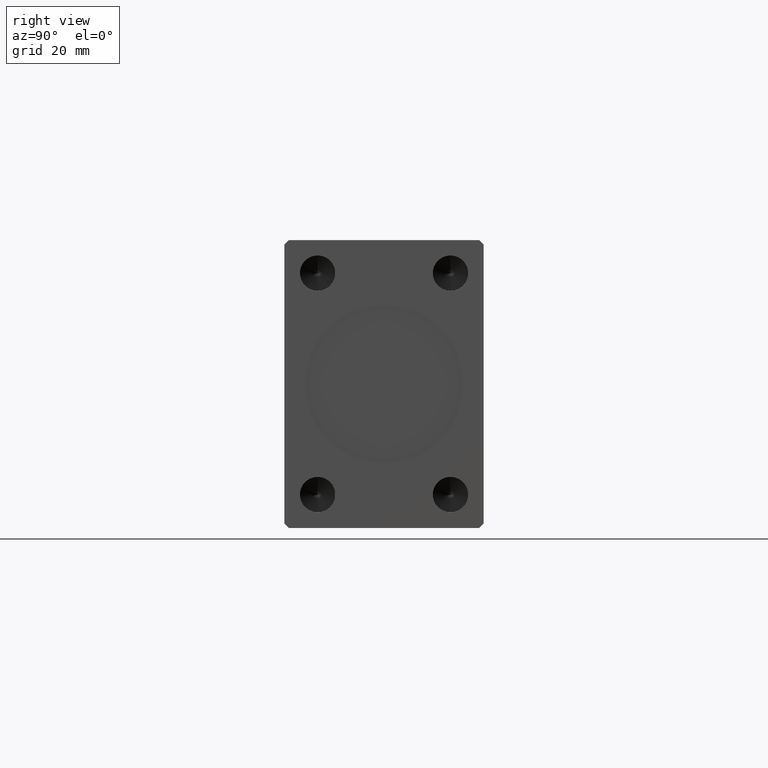
[diagram: clean part render]
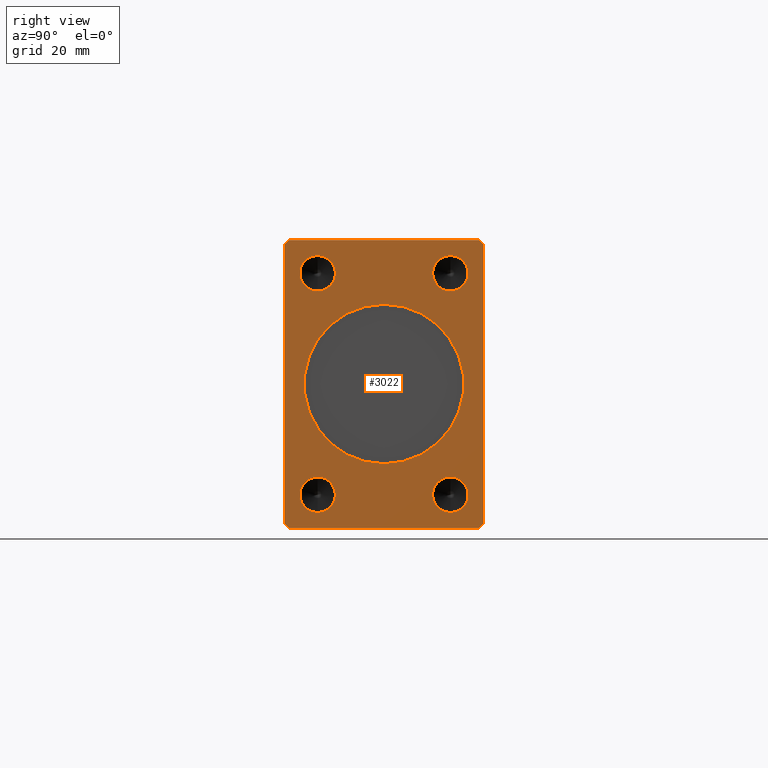
[diagram: same view with one face highlighted and labeled with its STEP entity id]
A machine part, right view. The second image highlights one B-rep face of the part: STEP entity #3022.
In plain terms, the highlighted planar face has unit normal (1, 0, 0).
Its self-contained STEP definition (entity closure, byte-faithful):
#149 = VERTEX_POINT ( 'NONE', #41488 ) ;
#640 = CARTESIAN_POINT ( 'NONE',  ( 138.0000000000000000, 15.00000000000000355, -24.99999999999999289 ) ) ;
#847 = ORIENTED_EDGE ( 'NONE', *, *, #18905, .F. ) ;
#1220 = CARTESIAN_POINT ( 'NONE',  ( 138.0000000000000000, -14.99999999999999645, 24.99999999999999645 ) ) ;
#1411 = FACE_BOUND ( 'NONE', #7786, .T. ) ;
#1564 = CARTESIAN_POINT ( 'NONE',  ( 138.0000000000000000, 22.49999999999999645, 31.50000000000000000 ) ) ;
#2258 = CARTESIAN_POINT ( 'NONE',  ( 138.0000000000000000, -14.99999999999999645, -24.99999999999999645 ) ) ;
#2324 = CARTESIAN_POINT ( 'NONE',  ( 138.0000000000000000, -22.50000000000001421, -31.50000000000000711 ) ) ;
#2932 = LINE ( 'NONE', #22809, #41988 ) ;
#3022 = ADVANCED_FACE ( 'NONE', ( #5400, #31972, #1411, #15445, #29056, #4752 ), #21700, .T. ) ;
#3756 = CARTESIAN_POINT ( 'NONE',  ( 138.0000000000000000, -22.50000000000001776, 31.50000000000000000 ) ) ;
#3759 = ORIENTED_EDGE ( 'NONE', *, *, #44011, .T. ) ;
#3895 = LINE ( 'NONE', #17055, #22601 ) ;
#4752 = FACE_OUTER_BOUND ( 'NONE', #15615, .T. ) ;
#5033 = ORIENTED_EDGE ( 'NONE', *, *, #15383, .F. ) ;
#5153 = VERTEX_POINT ( 'NONE', #11944 ) ;
#5400 = FACE_BOUND ( 'NONE', #16674, .T. ) ;
#5448 = ORIENTED_EDGE ( 'NONE', *, *, #8519, .T. ) ;
#6412 = LINE ( 'NONE', #20009, #24931 ) ;
#6848 = DIRECTION ( 'NONE',  ( 0.000000000000000000, 0.7071067811865474617, 0.7071067811865474617 ) ) ;
#6887 = DIRECTION ( 'NONE',  ( 1.000000000000000000, -0.000000000000000000, -0.000000000000000000 ) ) ;
#6991 = VERTEX_POINT ( 'NONE', #3756 ) ;
#7382 = EDGE_CURVE ( 'NONE', #19353, #17250, #31934, .T. ) ;
#7733 = DIRECTION ( 'NONE',  ( 0.000000000000000000, 0.7071067811865451302, -0.7071067811865500152 ) ) ;
#7786 = EDGE_LOOP ( 'NONE', ( #5033, #21609 ) ) ;
#8103 = DIRECTION ( 'NONE',  ( 0.000000000000000000, 0.000000000000000000, -1.000000000000000000 ) ) ;
#8229 = ORIENTED_EDGE ( 'NONE', *, *, #15408, .T. ) ;
#8519 = EDGE_CURVE ( 'NONE', #42809, #25645, #11523, .T. ) ;
#8758 = DIRECTION ( 'NONE',  ( 1.000000000000000000, 0.000000000000000000, 0.000000000000000000 ) ) ;
#8818 = ORIENTED_EDGE ( 'NONE', *, *, #38331, .F. ) ;
#9487 = VERTEX_POINT ( 'NONE', #18267 ) ;
#10672 = DIRECTION ( 'NONE',  ( 0.000000000000000000, 0.000000000000000000, -1.000000000000000000 ) ) ;
#10816 = DIRECTION ( 'NONE',  ( 1.000000000000000000, -0.000000000000000000, -0.000000000000000000 ) ) ;
#10905 = CARTESIAN_POINT ( 'NONE',  ( 138.0000000000000000, 22.49999999999999645, -31.50000000000000000 ) ) ;
#11042 = VERTEX_POINT ( 'NONE', #15694 ) ;
#11243 = DIRECTION ( 'NONE',  ( 1.000000000000000000, -0.000000000000000000, -0.000000000000000000 ) ) ;
#11523 = LINE ( 'NONE', #31822, #11839 ) ;
#11554 = ORIENTED_EDGE ( 'NONE', *, *, #23460, .T. ) ;
#11727 = ORIENTED_EDGE ( 'NONE', *, *, #14217, .T. ) ;
#11839 = VECTOR ( 'NONE', #7733, 1000.000000000000114 ) ;
#11944 = CARTESIAN_POINT ( 'NONE',  ( 138.0000000000000000, 15.00000000000000355, -28.99999999999999289 ) ) ;
#12078 = AXIS2_PLACEMENT_3D ( 'NONE', #26999, #23009, #36634 ) ;
#12110 = VERTEX_POINT ( 'NONE', #43582 ) ;
#12156 = DIRECTION ( 'NONE',  ( 1.000000000000000000, -0.000000000000000000, -0.000000000000000000 ) ) ;
#12225 = CIRCLE ( 'NONE', #17911, 4.000000000000000000 ) ;
#12294 = CIRCLE ( 'NONE', #13700, 4.000000000000000000 ) ;
#12372 = DIRECTION ( 'NONE',  ( 0.000000000000000000, 0.000000000000000000, -1.000000000000000000 ) ) ;
#13479 = AXIS2_PLACEMENT_3D ( 'NONE', #24669, #22220, #38521 ) ;
#13700 = AXIS2_PLACEMENT_3D ( 'NONE', #640, #6887, #10672 ) ;
#13710 = LINE ( 'NONE', #27318, #17558 ) ;
#14217 = EDGE_CURVE ( 'NONE', #6991, #42809, #13710, .T. ) ;
#14377 = CARTESIAN_POINT ( 'NONE',  ( 138.0000000000000000, -14.99999999999999645, -24.99999999999999645 ) ) ;
#14847 = VERTEX_POINT ( 'NONE', #26558 ) ;
#14953 = EDGE_LOOP ( 'NONE', ( #8818, #21890 ) ) ;
#15114 = ORIENTED_EDGE ( 'NONE', *, *, #32776, .T. ) ;
#15155 = VECTOR ( 'NONE', #32095, 1000.000000000000000 ) ;
#15208 = DIRECTION ( 'NONE',  ( 0.000000000000000000, 0.000000000000000000, -1.000000000000000000 ) ) ;
#15221 = DIRECTION ( 'NONE',  ( 0.000000000000000000, 0.000000000000000000, 1.000000000000000000 ) ) ;
#15231 = VERTEX_POINT ( 'NONE', #18225 ) ;
#15383 = EDGE_CURVE ( 'NONE', #149, #9487, #16878, .T. ) ;
#15408 = EDGE_CURVE ( 'NONE', #11042, #6991, #3895, .T. ) ;
#15445 = FACE_BOUND ( 'NONE', #23505, .T. ) ;
#15545 = AXIS2_PLACEMENT_3D ( 'NONE', #23566, #30696, #36970 ) ;
#15615 = EDGE_LOOP ( 'NONE', ( #11554, #3759, #8229, #11727, #5448, #26199, #15114, #42967 ) ) ;
#15694 = CARTESIAN_POINT ( 'NONE',  ( 138.0000000000000000, -21.50000000000001421, 32.50000000000000000 ) ) ;
#16282 = EDGE_CURVE ( 'NONE', #30856, #5153, #31915, .T. ) ;
#16674 = EDGE_LOOP ( 'NONE', ( #28951, #24057 ) ) ;
#16793 = DIRECTION ( 'NONE',  ( 1.000000000000000000, -0.000000000000000000, -0.000000000000000000 ) ) ;
#16878 = CIRCLE ( 'NONE', #41860, 4.000000000000000000 ) ;
#17055 = CARTESIAN_POINT ( 'NONE',  ( 138.0000000000000000, -21.50000000000001421, 32.50000000000000000 ) ) ;
#17250 = VERTEX_POINT ( 'NONE', #31339 ) ;
#17378 = ORIENTED_EDGE ( 'NONE', *, *, #43884, .F. ) ;
#17497 = DIRECTION ( 'NONE',  ( 0.000000000000000000, -0.7071067811865474617, -0.7071067811865474617 ) ) ;
#17558 = VECTOR ( 'NONE', #40942, 1000.000000000000000 ) ;
#17911 = AXIS2_PLACEMENT_3D ( 'NONE', #1220, #11243, #42056 ) ;
#18225 = CARTESIAN_POINT ( 'NONE',  ( 138.0000000000000000, 21.49999999999999645, 32.50000000000000000 ) ) ;
#18267 = CARTESIAN_POINT ( 'NONE',  ( 138.0000000000000000, -14.99999999999999645, -20.99999999999999645 ) ) ;
#18475 = CARTESIAN_POINT ( 'NONE',  ( 138.0000000000000000, 21.49999999999999645, 32.50000000000000000 ) ) ;
#18860 = CARTESIAN_POINT ( 'NONE',  ( 138.0000000000000000, -14.99999999999999645, 28.99999999999999645 ) ) ;
#18905 = EDGE_CURVE ( 'NONE', #12110, #23860, #25603, .T. ) ;
#19353 = VERTEX_POINT ( 'NONE', #33216 ) ;
#20009 = CARTESIAN_POINT ( 'NONE',  ( 138.0000000000000000, 21.49999999999999645, -32.50000000000000000 ) ) ;
#20260 = EDGE_CURVE ( 'NONE', #17250, #19353, #34858, .T. ) ;
#20677 = CIRCLE ( 'NONE', #31363, 4.000000000000000000 ) ;
#21058 = VECTOR ( 'NONE', #15221, 1000.000000000000000 ) ;
#21609 = ORIENTED_EDGE ( 'NONE', *, *, #34323, .F. ) ;
#21700 = PLANE ( 'NONE',  #43235 ) ;
#21890 = ORIENTED_EDGE ( 'NONE', *, *, #27532, .F. ) ;
#21999 = VERTEX_POINT ( 'NONE', #1564 ) ;
#22220 = DIRECTION ( 'NONE',  ( 1.000000000000000000, 0.000000000000000000, 0.000000000000000000 ) ) ;
#22601 = VECTOR ( 'NONE', #17497, 1000.000000000000114 ) ;
#22809 = CARTESIAN_POINT ( 'NONE',  ( 138.0000000000000000, 22.49999999999999645, 31.50000000000000000 ) ) ;
#23009 = DIRECTION ( 'NONE',  ( 1.000000000000000000, -0.000000000000000000, -0.000000000000000000 ) ) ;
#23460 = EDGE_CURVE ( 'NONE', #21999, #15231, #2932, .T. ) ;
#23505 = EDGE_LOOP ( 'NONE', ( #17378, #27941 ) ) ;
#23529 = DIRECTION ( 'NONE',  ( 0.000000000000000000, 0.000000000000000000, -1.000000000000000000 ) ) ;
#23566 = CARTESIAN_POINT ( 'NONE',  ( 138.0000000000000000, 0.000000000000000000, 0.000000000000000000 ) ) ;
#23860 = VERTEX_POINT ( 'NONE', #18860 ) ;
#23960 = DIRECTION ( 'NONE',  ( 0.000000000000000000, 1.000000000000000000, 1.613696256722610912E-16 ) ) ;
#24057 = ORIENTED_EDGE ( 'NONE', *, *, #20260, .F. ) ;
#24669 = CARTESIAN_POINT ( 'NONE',  ( 138.0000000000000000, 0.000000000000000000, 0.000000000000000000 ) ) ;
#24724 = VERTEX_POINT ( 'NONE', #10905 ) ;
#24931 = VECTOR ( 'NONE', #6848, 1000.000000000000114 ) ;
#25301 = CARTESIAN_POINT ( 'NONE',  ( 138.0000000000000000, 15.00000000000000355, 21.00000000000000000 ) ) ;
#25603 = CIRCLE ( 'NONE', #12078, 4.000000000000000000 ) ;
#25645 = VERTEX_POINT ( 'NONE', #35425 ) ;
#26199 = ORIENTED_EDGE ( 'NONE', *, *, #31697, .T. ) ;
#26558 = CARTESIAN_POINT ( 'NONE',  ( 138.0000000000000000, 15.00000000000000355, 29.00000000000000000 ) ) ;
#26999 = CARTESIAN_POINT ( 'NONE',  ( 138.0000000000000000, -14.99999999999999645, 24.99999999999999645 ) ) ;
#27203 = CIRCLE ( 'NONE', #30080, 4.000000000000000000 ) ;
#27305 = CARTESIAN_POINT ( 'NONE',  ( 138.0000000000000000, -21.50000000000001776, -32.50000000000000711 ) ) ;
#27318 = CARTESIAN_POINT ( 'NONE',  ( 138.0000000000000000, -22.50000000000001776, 31.50000000000000000 ) ) ;
#27532 = EDGE_CURVE ( 'NONE', #14847, #41993, #34610, .T. ) ;
#27941 = ORIENTED_EDGE ( 'NONE', *, *, #16282, .F. ) ;
#28277 = EDGE_CURVE ( 'NONE', #24724, #21999, #38211, .T. ) ;
#28951 = ORIENTED_EDGE ( 'NONE', *, *, #7382, .F. ) ;
#29056 = FACE_BOUND ( 'NONE', #42318, .T. ) ;
#29122 = CARTESIAN_POINT ( 'NONE',  ( 138.0000000000000000, 15.00000000000000355, -20.99999999999999289 ) ) ;
#29250 = DIRECTION ( 'NONE',  ( 1.000000000000000000, -0.000000000000000000, -0.000000000000000000 ) ) ;
#30080 = AXIS2_PLACEMENT_3D ( 'NONE', #41156, #40503, #23529 ) ;
#30414 = DIRECTION ( 'NONE',  ( 0.000000000000000000, 0.000000000000000000, -1.000000000000000000 ) ) ;
#30696 = DIRECTION ( 'NONE',  ( 1.000000000000000000, 0.000000000000000000, 0.000000000000000000 ) ) ;
#30856 = VERTEX_POINT ( 'NONE', #29122 ) ;
#31339 = CARTESIAN_POINT ( 'NONE',  ( 138.0000000000000000, 2.204364238465235428E-15, 18.00000000000000000 ) ) ;
#31363 = AXIS2_PLACEMENT_3D ( 'NONE', #2258, #29250, #15208 ) ;
#31697 = EDGE_CURVE ( 'NONE', #25645, #40819, #34009, .T. ) ;
#31822 = CARTESIAN_POINT ( 'NONE',  ( 138.0000000000000000, -22.50000000000001421, -31.50000000000000711 ) ) ;
#31915 = CIRCLE ( 'NONE', #35492, 4.000000000000000000 ) ;
#31934 = CIRCLE ( 'NONE', #15545, 18.00000000000000000 ) ;
#31972 = FACE_BOUND ( 'NONE', #14953, .T. ) ;
#32027 = CARTESIAN_POINT ( 'NONE',  ( 138.0000000000000000, 15.00000000000000355, -24.99999999999999289 ) ) ;
#32095 = DIRECTION ( 'NONE',  ( 0.000000000000000000, -1.000000000000000000, 0.000000000000000000 ) ) ;
#32477 = VECTOR ( 'NONE', #23960, 1000.000000000000000 ) ;
#32622 = CARTESIAN_POINT ( 'NONE',  ( 138.0000000000000000, 0.000000000000000000, 0.000000000000000000 ) ) ;
#32776 = EDGE_CURVE ( 'NONE', #40819, #24724, #6412, .T. ) ;
#33216 = CARTESIAN_POINT ( 'NONE',  ( 138.0000000000000000, 0.000000000000000000, -18.00000000000000000 ) ) ;
#34009 = LINE ( 'NONE', #27305, #32477 ) ;
#34323 = EDGE_CURVE ( 'NONE', #9487, #149, #20677, .T. ) ;
#34610 = CIRCLE ( 'NONE', #42482, 4.000000000000000000 ) ;
#34858 = CIRCLE ( 'NONE', #13479, 18.00000000000000000 ) ;
#34909 = DIRECTION ( 'NONE',  ( 0.000000000000000000, 0.000000000000000000, -1.000000000000000000 ) ) ;
#35425 = CARTESIAN_POINT ( 'NONE',  ( 138.0000000000000000, -21.50000000000001776, -32.50000000000000711 ) ) ;
#35492 = AXIS2_PLACEMENT_3D ( 'NONE', #32027, #12156, #12372 ) ;
#36634 = DIRECTION ( 'NONE',  ( 0.000000000000000000, 0.000000000000000000, -1.000000000000000000 ) ) ;
#36654 = DIRECTION ( 'NONE',  ( 0.000000000000000000, -0.7071067811865474617, 0.7071067811865474617 ) ) ;
#36970 = DIRECTION ( 'NONE',  ( 0.000000000000000000, 0.000000000000000000, -1.000000000000000000 ) ) ;
#37125 = CARTESIAN_POINT ( 'NONE',  ( 138.0000000000000000, 15.00000000000000355, 25.00000000000000000 ) ) ;
#38211 = LINE ( 'NONE', #41788, #21058 ) ;
#38331 = EDGE_CURVE ( 'NONE', #41993, #14847, #27203, .T. ) ;
#38521 = DIRECTION ( 'NONE',  ( 0.000000000000000000, 0.000000000000000000, -1.000000000000000000 ) ) ;
#39032 = ORIENTED_EDGE ( 'NONE', *, *, #41131, .F. ) ;
#40503 = DIRECTION ( 'NONE',  ( 1.000000000000000000, -0.000000000000000000, -0.000000000000000000 ) ) ;
#40731 = CARTESIAN_POINT ( 'NONE',  ( 138.0000000000000000, 21.49999999999999645, -32.50000000000000000 ) ) ;
#40819 = VERTEX_POINT ( 'NONE', #40731 ) ;
#40942 = DIRECTION ( 'NONE',  ( 0.000000000000000000, 5.507058653894625853E-17, -1.000000000000000000 ) ) ;
#41131 = EDGE_CURVE ( 'NONE', #23860, #12110, #12225, .T. ) ;
#41156 = CARTESIAN_POINT ( 'NONE',  ( 138.0000000000000000, 15.00000000000000355, 25.00000000000000000 ) ) ;
#41488 = CARTESIAN_POINT ( 'NONE',  ( 138.0000000000000000, -14.99999999999999645, -28.99999999999999645 ) ) ;
#41788 = CARTESIAN_POINT ( 'NONE',  ( 138.0000000000000000, 22.49999999999999645, -31.50000000000000000 ) ) ;
#41860 = AXIS2_PLACEMENT_3D ( 'NONE', #14377, #10816, #34909 ) ;
#41988 = VECTOR ( 'NONE', #36654, 1000.000000000000114 ) ;
#41993 = VERTEX_POINT ( 'NONE', #25301 ) ;
#42056 = DIRECTION ( 'NONE',  ( 0.000000000000000000, 0.000000000000000000, -1.000000000000000000 ) ) ;
#42156 = LINE ( 'NONE', #18475, #15155 ) ;
#42318 = EDGE_LOOP ( 'NONE', ( #847, #39032 ) ) ;
#42482 = AXIS2_PLACEMENT_3D ( 'NONE', #37125, #16793, #30414 ) ;
#42809 = VERTEX_POINT ( 'NONE', #2324 ) ;
#42967 = ORIENTED_EDGE ( 'NONE', *, *, #28277, .T. ) ;
#43235 = AXIS2_PLACEMENT_3D ( 'NONE', #32622, #8758, #8103 ) ;
#43582 = CARTESIAN_POINT ( 'NONE',  ( 138.0000000000000000, -14.99999999999999645, 20.99999999999999645 ) ) ;
#43884 = EDGE_CURVE ( 'NONE', #5153, #30856, #12294, .T. ) ;
#44011 = EDGE_CURVE ( 'NONE', #15231, #11042, #42156, .T. ) ;